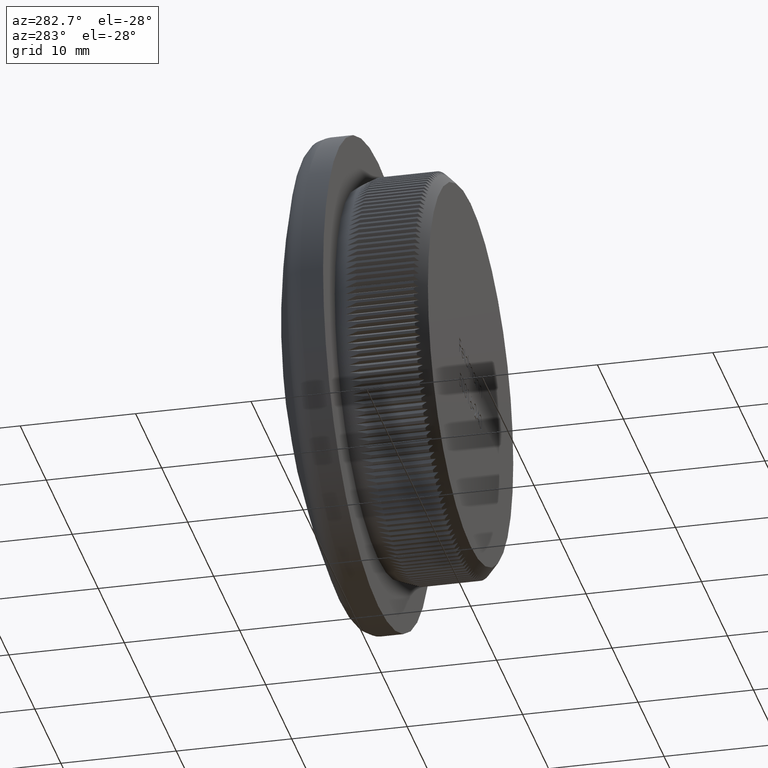
[diagram: clean part render]
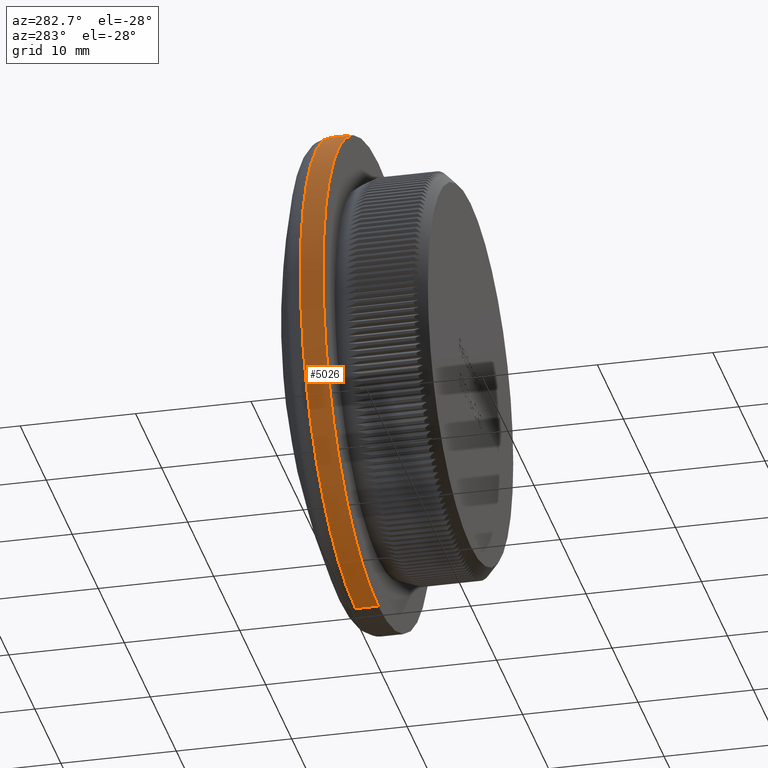
[diagram: same view with one face highlighted and labeled with its STEP entity id]
A machine part, auxiliary view. The second image highlights one B-rep face of the part: STEP entity #5026.
In plain terms, the highlighted cylindrical surface (partial cylindrical patch) has radius 21.2 mm, axis along (-0, -1, -0).
Its self-contained STEP definition (entity closure, byte-faithful):
#391 = EDGE_CURVE ( 'NONE', #7101, #25193, #1650, .T. ) ;
#651 = CARTESIAN_POINT ( 'NONE',  ( 2.596251214192389200E-015, 9.966330070852492900, 21.20000000000000300 ) ) ;
#1650 = CIRCLE ( 'NONE', #10605, 21.20000000000000300 ) ;
#4497 = CARTESIAN_POINT ( 'NONE',  ( 0.0000000000000000000, 9.966330070852492900, -21.20000000000000300 ) ) ;
#4768 = VERTEX_POINT ( 'NONE', #18491 ) ;
#4835 = VECTOR ( 'NONE', #23190, 1000.000000000000000 ) ;
#4887 = CYLINDRICAL_SURFACE ( 'NONE', #29060, 21.20000000000000300 ) ;
#5009 = EDGE_CURVE ( 'NONE', #4768, #20995, #21170, .T. ) ;
#5026 = ADVANCED_FACE ( 'NONE', ( #22659 ), #4887, .T. ) ;
#6086 = VECTOR ( 'NONE', #30694, 1000.000000000000000 ) ;
#6140 = EDGE_CURVE ( 'NONE', #7101, #4768, #29294, .T. ) ;
#7101 = VERTEX_POINT ( 'NONE', #651 ) ;
#9456 = AXIS2_PLACEMENT_3D ( 'NONE', #18556, #30148, #16045 ) ;
#10605 = AXIS2_PLACEMENT_3D ( 'NONE', #20178, #20275, #15189 ) ;
#10639 = ORIENTED_EDGE ( 'NONE', *, *, #6140, .F. ) ;
#13051 = EDGE_CURVE ( 'NONE', #25193, #20995, #19824, .T. ) ;
#15189 = DIRECTION ( 'NONE',  ( 0.0000000000000000000, 0.0000000000000000000, -1.000000000000000000 ) ) ;
#15642 = CARTESIAN_POINT ( 'NONE',  ( 2.596251214192389200E-015, 0.0000000000000000000, 21.20000000000000300 ) ) ;
#16045 = DIRECTION ( 'NONE',  ( 0.0000000000000000000, 0.0000000000000000000, -1.000000000000000000 ) ) ;
#18339 = CARTESIAN_POINT ( 'NONE',  ( 0.0000000000000000000, 0.0000000000000000000, 0.0000000000000000000 ) ) ;
#18491 = CARTESIAN_POINT ( 'NONE',  ( 2.596251214192388800E-015, 8.000000000000000000, 21.19999999999999900 ) ) ;
#18556 = CARTESIAN_POINT ( 'NONE',  ( 0.0000000000000000000, 8.000000000000000000, 0.0000000000000000000 ) ) ;
#18819 = CARTESIAN_POINT ( 'NONE',  ( 0.0000000000000000000, 0.0000000000000000000, -21.20000000000000300 ) ) ;
#19393 = ORIENTED_EDGE ( 'NONE', *, *, #13051, .T. ) ;
#19824 = LINE ( 'NONE', #18819, #6086 ) ;
#20178 = CARTESIAN_POINT ( 'NONE',  ( 0.0000000000000000000, 9.966330070852492900, 0.0000000000000000000 ) ) ;
#20275 = DIRECTION ( 'NONE',  ( -0.0000000000000000000, -1.000000000000000000, -0.0000000000000000000 ) ) ;
#20995 = VERTEX_POINT ( 'NONE', #23858 ) ;
#21037 = DIRECTION ( 'NONE',  ( 0.0000000000000000000, 0.0000000000000000000, -1.000000000000000000 ) ) ;
#21170 = CIRCLE ( 'NONE', #9456, 21.19999999999999900 ) ;
#22659 = FACE_OUTER_BOUND ( 'NONE', #23122, .T. ) ;
#23122 = EDGE_LOOP ( 'NONE', ( #10639, #23734, #19393, #26107 ) ) ;
#23190 = DIRECTION ( 'NONE',  ( -0.0000000000000000000, -1.000000000000000000, -0.0000000000000000000 ) ) ;
#23734 = ORIENTED_EDGE ( 'NONE', *, *, #391, .T. ) ;
#23858 = CARTESIAN_POINT ( 'NONE',  ( 0.0000000000000000000, 8.000000000000000000, -21.19999999999999900 ) ) ;
#25193 = VERTEX_POINT ( 'NONE', #4497 ) ;
#26107 = ORIENTED_EDGE ( 'NONE', *, *, #5009, .F. ) ;
#29060 = AXIS2_PLACEMENT_3D ( 'NONE', #18339, #30346, #21037 ) ;
#29294 = LINE ( 'NONE', #15642, #4835 ) ;
#30148 = DIRECTION ( 'NONE',  ( -0.0000000000000000000, -1.000000000000000000, -0.0000000000000000000 ) ) ;
#30346 = DIRECTION ( 'NONE',  ( -0.0000000000000000000, -1.000000000000000000, -0.0000000000000000000 ) ) ;
#30694 = DIRECTION ( 'NONE',  ( -0.0000000000000000000, -1.000000000000000000, -0.0000000000000000000 ) ) ;